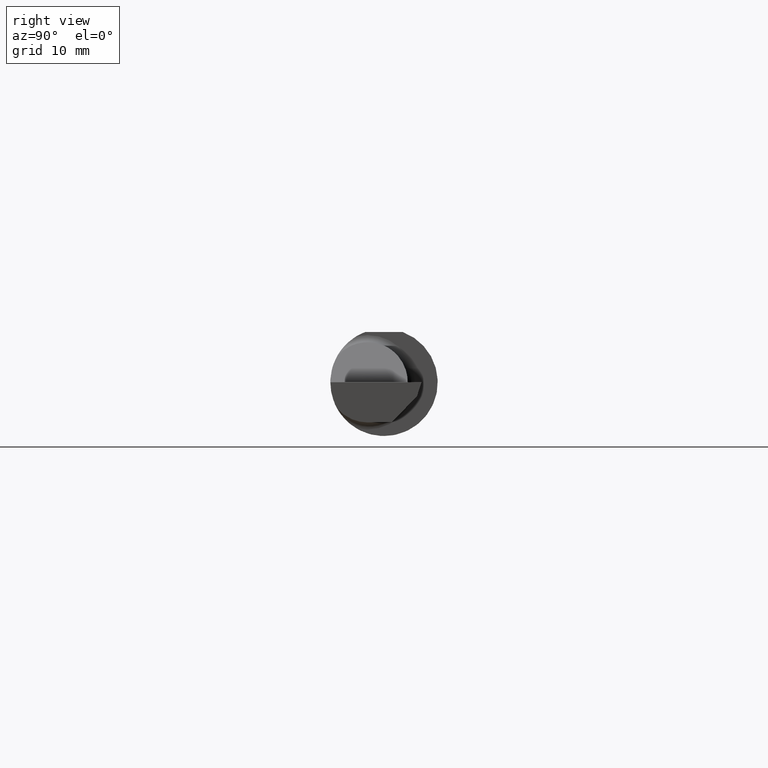
[diagram: clean part render]
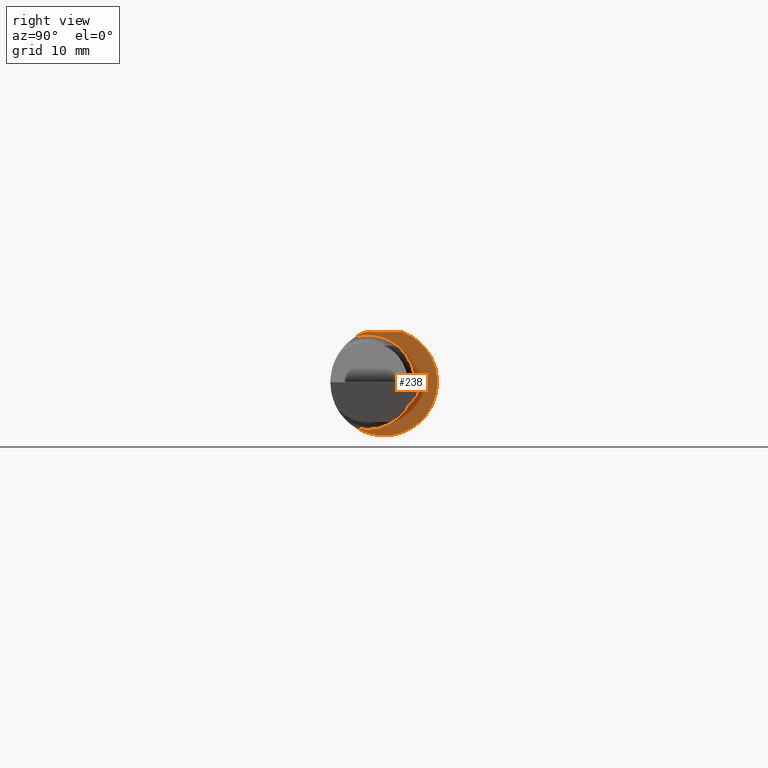
[diagram: same view with one face highlighted and labeled with its STEP entity id]
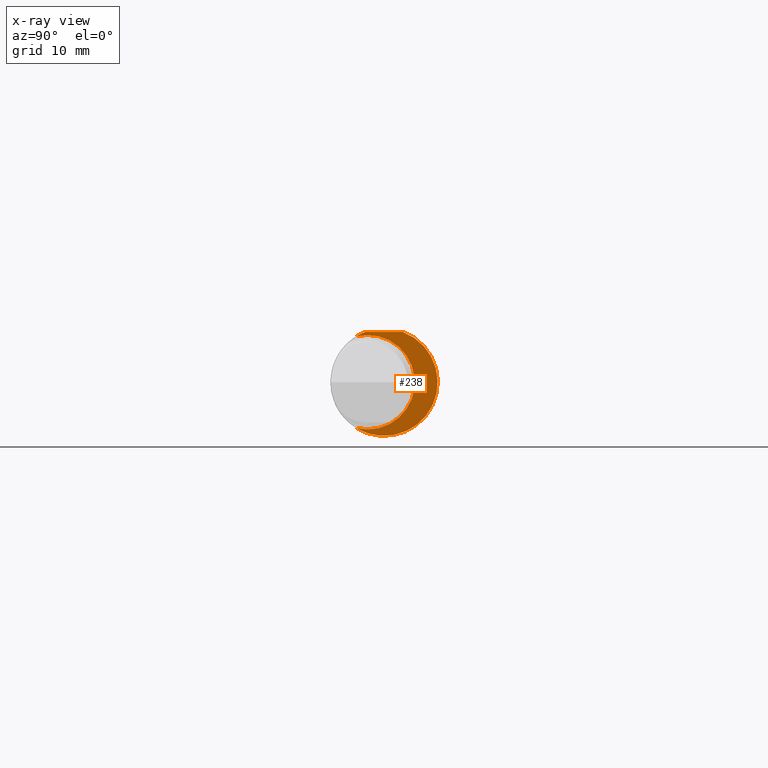
[diagram: x-ray of the same camera — body ghosted, the highlighted face saturated]
A machine part, right view. The second image highlights one B-rep face of the part: STEP entity #238.
The next image is the same camera in x-ray: the body ghosted, the highlighted face saturated — about 3% of this face is hidden behind the body in this view.
In plain terms, the highlighted planar face has unit normal (1, 0, 0).
Its self-contained STEP definition (entity closure, byte-faithful):
#53 = DIRECTION ( 'NONE',  ( -6.829619984160658046E-18, 1.000000000000000000, 0.000000000000000000 ) ) ;
#69 = VERTEX_POINT ( 'NONE', #534 ) ;
#119 = CIRCLE ( 'NONE', #308, 0.1873499999999999888 ) ;
#126 = DIRECTION ( 'NONE',  ( 0.000000000000000000, 1.000000000000000000, 0.000000000000000000 ) ) ;
#138 = ORIENTED_EDGE ( 'NONE', *, *, #626, .T. ) ;
#144 = CARTESIAN_POINT ( 'NONE',  ( 1.699999999999999956, -0.06597272163553659363, 0.1753499999999999781 ) ) ;
#159 = VECTOR ( 'NONE', #247, 39.37007874015748143 ) ;
#207 = CIRCLE ( 'NONE', #581, 0.1650500000000000300 ) ;
#209 = EDGE_CURVE ( 'NONE', #325, #448, #542, .T. ) ;
#238 = ADVANCED_FACE ( 'NONE', ( #248 ), #347, .T. ) ;
#243 = CARTESIAN_POINT ( 'NONE',  ( 1.699999999999999956, 0.2373500000000000332, 0.1753499999999999504 ) ) ;
#246 = DIRECTION ( 'NONE',  ( -1.000000000000000000, -6.829619984160658046E-18, -0.000000000000000000 ) ) ;
#247 = DIRECTION ( 'NONE',  ( 6.829619984160658046E-18, -1.000000000000000000, 1.438723400918613551E-16 ) ) ;
#248 = FACE_OUTER_BOUND ( 'NONE', #337, .T. ) ;
#282 = ORIENTED_EDGE ( 'NONE', *, *, #209, .T. ) ;
#289 = CARTESIAN_POINT ( 'NONE',  ( 1.699999999999999956, -0.05740000000000000657, 0.000000000000000000 ) ) ;
#308 = AXIS2_PLACEMENT_3D ( 'NONE', #618, #612, #621 ) ;
#325 = VERTEX_POINT ( 'NONE', #603 ) ;
#335 = EDGE_CURVE ( 'NONE', #448, #400, #601, .T. ) ;
#337 = EDGE_LOOP ( 'NONE', ( #461, #282, #365, #138 ) ) ;
#340 = CARTESIAN_POINT ( 'NONE',  ( 1.699999999999999956, 0.1076500000000000096, 0.000000000000000000 ) ) ;
#347 = PLANE ( 'NONE',  #359 ) ;
#359 = AXIS2_PLACEMENT_3D ( 'NONE', #340, #438, #53 ) ;
#365 = ORIENTED_EDGE ( 'NONE', *, *, #335, .T. ) ;
#400 = VERTEX_POINT ( 'NONE', #563 ) ;
#401 = DIRECTION ( 'NONE',  ( 0.000000000000000000, -1.000000000000000000, 0.000000000000000000 ) ) ;
#438 = DIRECTION ( 'NONE',  ( 1.000000000000000000, 6.829619984160658046E-18, 0.000000000000000000 ) ) ;
#448 = VERTEX_POINT ( 'NONE', #144 ) ;
#461 = ORIENTED_EDGE ( 'NONE', *, *, #500, .T. ) ;
#500 = EDGE_CURVE ( 'NONE', #69, #325, #119, .T. ) ;
#534 = CARTESIAN_POINT ( 'NONE',  ( 1.699999999999999956, -0.09715400696864101571, -0.1601908905959925355 ) ) ;
#542 = LINE ( 'NONE', #243, #159 ) ;
#550 = CARTESIAN_POINT ( 'NONE',  ( 1.699999999999999956, 0.000000000000000000, 0.000000000000000000 ) ) ;
#553 = DIRECTION ( 'NONE',  ( 1.000000000000000000, 6.829619984160658046E-18, 0.000000000000000000 ) ) ;
#563 = CARTESIAN_POINT ( 'NONE',  ( 1.699999999999999956, -0.09715400696864101571, 0.1601908905959925355 ) ) ;
#581 = AXIS2_PLACEMENT_3D ( 'NONE', #289, #246, #401 ) ;
#601 = CIRCLE ( 'NONE', #622, 0.1873499999999999888 ) ;
#603 = CARTESIAN_POINT ( 'NONE',  ( 1.699999999999999956, 0.06597272163553663527, 0.1753499999999999781 ) ) ;
#612 = DIRECTION ( 'NONE',  ( 1.000000000000000000, 6.829619984160658046E-18, 0.000000000000000000 ) ) ;
#618 = CARTESIAN_POINT ( 'NONE',  ( 1.699999999999999956, 0.000000000000000000, 0.000000000000000000 ) ) ;
#621 = DIRECTION ( 'NONE',  ( 0.000000000000000000, 1.000000000000000000, 0.000000000000000000 ) ) ;
#622 = AXIS2_PLACEMENT_3D ( 'NONE', #550, #553, #126 ) ;
#626 = EDGE_CURVE ( 'NONE', #400, #69, #207, .T. ) ;